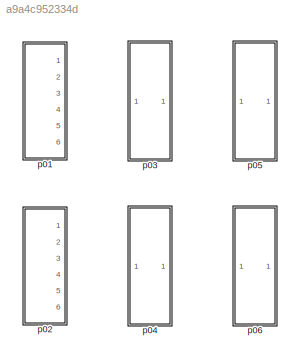
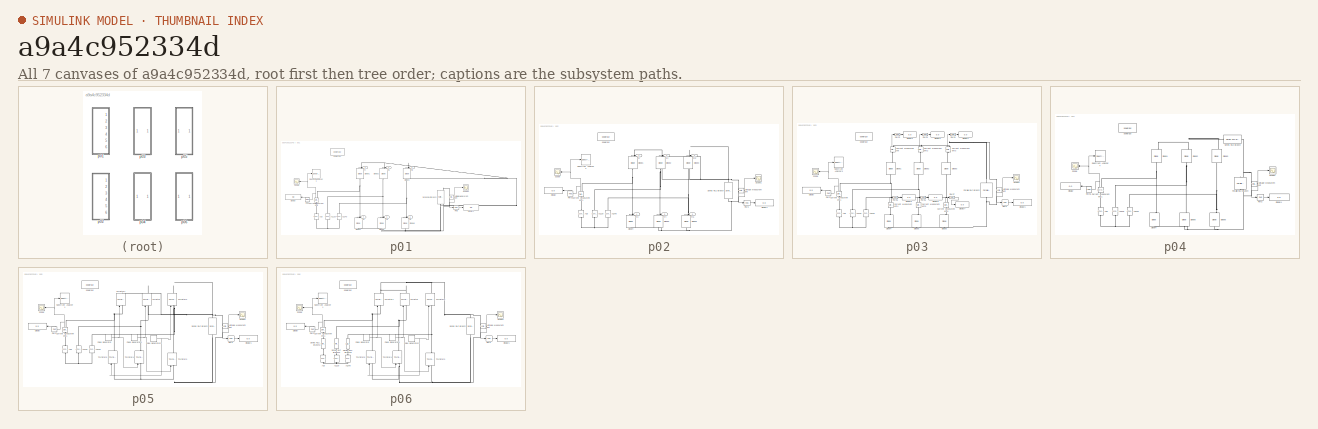
[diagram: thumbnail index - all 7 canvases of the model, root first then tree order]
MODEL slx_a9a4c952334d
KIND model
CONFIG AbsTol = auto
CONFIG EnableMultiTasking = off
CONFIG FixedStep = auto
CONFIG MaxStep = auto
CONFIG MinStep = auto
CONFIG RelTol = 1e-3
CONFIG SampleTimeConstraint = Unconstrained
CONFIG Solver = VariableStepAuto
CONFIG SolverName = VariableStepAuto
CONFIG StartTime = 0.0
CONFIG StopTime = 0.1
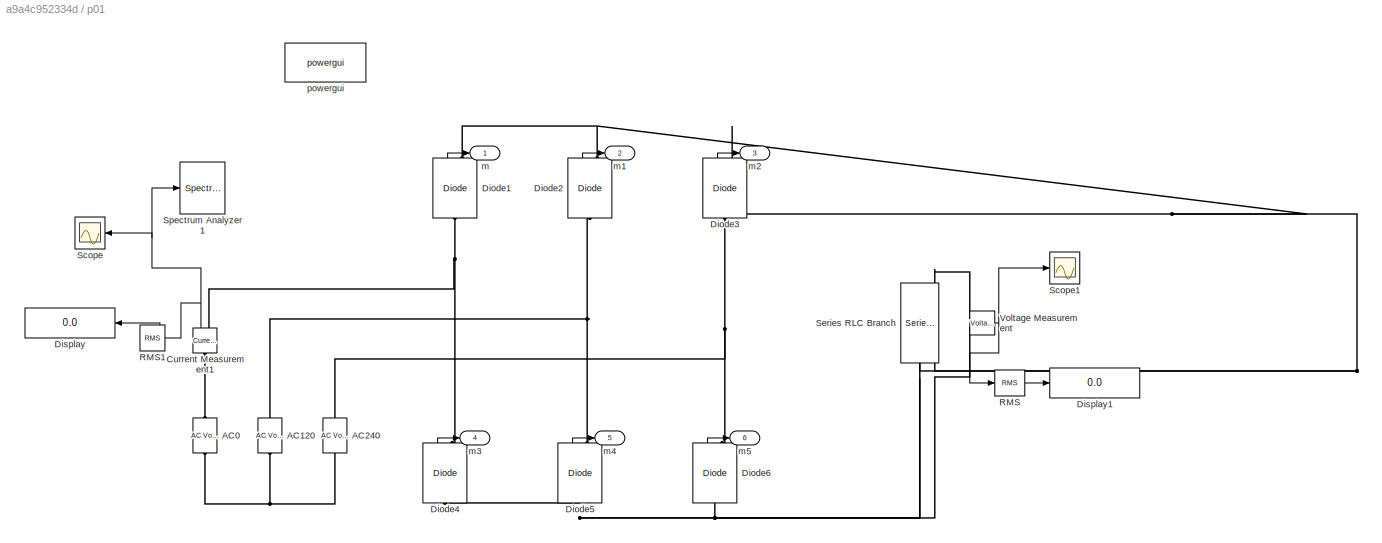
BLOCK [SubSystem] p01
  Commented = on
  Ports = [0, 6]
  RequestExecContextInheritance = off
BLOCK [Reference] p01/AC0  REF=powerlib/Electrical
Sources/AC Voltage Source
  NameLocation = right
  Ports = [0, 0, 0, 0, 0, 1, 1]
  SourceBlock = powerlib/Electrical\nSources/AC Voltage Source
  SourceProductBaseCode = PS
  SourceType = AC Voltage Source
BLOCK [Reference] p01/AC120  REF=powerlib/Electrical
Sources/AC Voltage Source
  NameLocation = right
  Ports = [0, 0, 0, 0, 0, 1, 1]
  SourceBlock = powerlib/Electrical\nSources/AC Voltage Source
  SourceProductBaseCode = PS
  SourceType = AC Voltage Source
BLOCK [Reference] p01/AC240  REF=powerlib/Electrical
Sources/AC Voltage Source
  NameLocation = right
  Ports = [0, 0, 0, 0, 0, 1, 1]
  SourceBlock = powerlib/Electrical\nSources/AC Voltage Source
  SourceProductBaseCode = PS
  SourceType = AC Voltage Source
BLOCK [Reference] p01/Current Measurement1  REF=powerlib/Measurements/Current Measurement
  NameLocation = right
  Ports = [0, 1, 0, 0, 0, 1, 1]
  SourceBlock = powerlib/Measurements/Current Measurement
  SourceProductBaseCode = PS
  SourceType = Current Measurement
  UserDataPersistent = on
BLOCK [Reference] p01/Diode1  REF=powerlib/Power
Electronics/Diode
  NameLocation = right
  Ports = [0, 1, 0, 0, 0, 1, 1]
  SourceBlock = powerlib/Power\nElectronics/Diode
  SourceProductBaseCode = PS
  SourceType = Diode
BLOCK [Reference] p01/Diode2  REF=powerlib/Power
Electronics/Diode
  NameLocation = right
  Ports = [0, 1, 0, 0, 0, 1, 1]
  SourceBlock = powerlib/Power\nElectronics/Diode
  SourceProductBaseCode = PS
  SourceType = Diode
BLOCK [Reference] p01/Diode3  REF=powerlib/Power
Electronics/Diode
  NameLocation = right
  Ports = [0, 1, 0, 0, 0, 1, 1]
  SourceBlock = powerlib/Power\nElectronics/Diode
  SourceProductBaseCode = PS
  SourceType = Diode
BLOCK [Reference] p01/Diode4  REF=powerlib/Power
Electronics/Diode
  NameLocation = right
  Ports = [0, 1, 0, 0, 0, 1, 1]
  SourceBlock = powerlib/Power\nElectronics/Diode
  SourceProductBaseCode = PS
  SourceType = Diode
BLOCK [Reference] p01/Diode5  REF=powerlib/Power
Electronics/Diode
  NameLocation = right
  Ports = [0, 1, 0, 0, 0, 1, 1]
  SourceBlock = powerlib/Power\nElectronics/Diode
  SourceProductBaseCode = PS
  SourceType = Diode
BLOCK [Reference] p01/Diode6  REF=powerlib/Power
Electronics/Diode
  NameLocation = right
  Ports = [0, 1, 0, 0, 0, 1, 1]
  SourceBlock = powerlib/Power\nElectronics/Diode
  SourceProductBaseCode = PS
  SourceType = Diode
BLOCK [Display] p01/Display
  Decimation = 1
  NameLocation = top
  Ports = [1]
BLOCK [Display] p01/Display1
  Decimation = 1
  Ports = [1]
BLOCK [Reference] p01/RMS  REF=powerlib_meascontrol/Measurements/RMS
  Ports = [1, 1]
  SourceBlock = powerlib_meascontrol/Measurements/RMS
  SourceProductBaseCode = PS
  SourceType = RMS
BLOCK [Reference] p01/RMS1  REF=powerlib_meascontrol/Measurements/RMS
  NameLocation = top
  Ports = [1, 1]
  SourceBlock = powerlib_meascontrol/Measurements/RMS
  SourceProductBaseCode = PS
  SourceType = RMS
BLOCK [Scope] p01/Scope
  Floating = off
  NameLocation = top
  NumInputPorts = 1
  Ports = [1]
  ScopeSpecificationString = Simulink.scopes.TimeScopeBlockCfg('CurrentConfiguration', extmgr.ConfigurationSet(extmgr.Configuration('Core','General UI',true),extmgr.Configuration('Core','Source UI',true),extmgr.Configuration('Sources','WiredSimulink',true,'DataLoggingVariableName','ScopeData2'),extmgr.Configuration('Visuals','Time Domain',true,'SerializedDisplays',{struct('MinYLimReal','-12.59327','MaxYLimReal','12.59327','YL...<+1385ch>
BLOCK [Scope] p01/Scope1
  Floating = off
  NumInputPorts = 1
  Ports = [1]
  ScopeSpecificationString = Simulink.scopes.TimeScopeBlockCfg('CurrentConfiguration', extmgr.ConfigurationSet(extmgr.Configuration('Core','General UI',true),extmgr.Configuration('Core','Source UI',true),extmgr.Configuration('Sources','WiredSimulink',true,'DataLoggingVariableName','ScopeData1'),extmgr.Configuration('Visuals','Time Domain',true,'SerializedDisplays',{struct('MinYLimReal','456.05139','MaxYLimReal','546.2925','YL...<+1417ch>
BLOCK [Reference] p01/Series RLC Branch  REF=powerlib/Elements/Series RLC Branch
  NameLocation = left
  Ports = [0, 0, 0, 0, 0, 1, 1]
  SourceBlock = powerlib/Elements/Series RLC Branch
  SourceProductBaseCode = PS
  SourceType = Series RLC Branch
BLOCK [SpectrumAnalyzer] p01/Spectrum Analyzer 1
  Ports = [1]
  ScopeSpecificationString = spbscopes.SpectrumAnalyzerBlockCfg('CurrentConfiguration', extmgr.ConfigurationSet(extmgr.Configuration('Core','General UI',true),extmgr.Configuration('Core','Source UI',true),extmgr.Configuration('Sources','WiredSimulink',true),extmgr.Configuration('Visuals','Spectrum',true,'AxesProperties',struct('Color',{[0 0 0],[0 0 0]},'XColor',{[0.686274509803922 0.686274509803922 0.686274509803922],[0.68627...<+2526ch>  <repeated x3 — deduplicated; at blocks: Spectrum Analyzer 1>
BLOCK [Reference] p01/Voltage Measurement  REF=powerlib/Measurements/Voltage Measurement
  Ports = [0, 1, 0, 0, 0, 2]
  SourceBlock = powerlib/Measurements/Voltage Measurement
  SourceProductBaseCode = PS
  SourceType = Voltage Measurement
  UserDataPersistent = on
BLOCK [Outport] p01/m
BLOCK [Outport] p01/m1
  Port = 2
BLOCK [Outport] p01/m2
  Port = 3
BLOCK [Outport] p01/m3
  Port = 4
BLOCK [Outport] p01/m4
  Port = 5
BLOCK [Outport] p01/m5
  Port = 6
BLOCK [Reference] p01/powergui  REF=powerlib/powergui
  Ports = []
  Priority = 1
  SourceBlock = powerlib/powergui
  SourceProductBaseCode = PS
  SourceType = PSB option menu block
BLOCK [SubSystem] p02
  Commented = on
  Ports = [0, 6]
  RequestExecContextInheritance = off
BLOCK [Reference] p02/AC0  REF=powerlib/Electrical
Sources/AC Voltage Source
  NameLocation = right
  Ports = [0, 0, 0, 0, 0, 1, 1]
  SourceBlock = powerlib/Electrical\nSources/AC Voltage Source
  SourceProductBaseCode = PS
  SourceType = AC Voltage Source
BLOCK [Reference] p02/AC120  REF=powerlib/Electrical
Sources/AC Voltage Source
  NameLocation = right
  Ports = [0, 0, 0, 0, 0, 1, 1]
  SourceBlock = powerlib/Electrical\nSources/AC Voltage Source
  SourceProductBaseCode = PS
  SourceType = AC Voltage Source
BLOCK [Reference] p02/AC240  REF=powerlib/Electrical
Sources/AC Voltage Source
  NameLocation = right
  Ports = [0, 0, 0, 0, 0, 1, 1]
  SourceBlock = powerlib/Electrical\nSources/AC Voltage Source
  SourceProductBaseCode = PS
  SourceType = AC Voltage Source
BLOCK [Reference] p02/Current Measurement1  REF=powerlib/Measurements/Current Measurement
  NameLocation = right
  Ports = [0, 1, 0, 0, 0, 1, 1]
  SourceBlock = powerlib/Measurements/Current Measurement
  SourceProductBaseCode = PS
  SourceType = Current Measurement
  UserDataPersistent = on
BLOCK [Reference] p02/Diode1  REF=powerlib/Power
Electronics/Diode
  NameLocation = right
  Ports = [0, 1, 0, 0, 0, 1, 1]
  SourceBlock = powerlib/Power\nElectronics/Diode
  SourceProductBaseCode = PS
  SourceType = Diode
BLOCK [Reference] p02/Diode2  REF=powerlib/Power
Electronics/Diode
  NameLocation = right
  Ports = [0, 1, 0, 0, 0, 1, 1]
  SourceBlock = powerlib/Power\nElectronics/Diode
  SourceProductBaseCode = PS
  SourceType = Diode
BLOCK [Reference] p02/Diode3  REF=powerlib/Power
Electronics/Diode
  NameLocation = right
  Ports = [0, 1, 0, 0, 0, 1, 1]
  SourceBlock = powerlib/Power\nElectronics/Diode
  SourceProductBaseCode = PS
  SourceType = Diode
BLOCK [Reference] p02/Diode4  REF=powerlib/Power
Electronics/Diode
  NameLocation = right
  Ports = [0, 1, 0, 0, 0, 1, 1]
  SourceBlock = powerlib/Power\nElectronics/Diode
  SourceProductBaseCode = PS
  SourceType = Diode
BLOCK [Reference] p02/Diode5  REF=powerlib/Power
Electronics/Diode
  NameLocation = right
  Ports = [0, 1, 0, 0, 0, 1, 1]
  SourceBlock = powerlib/Power\nElectronics/Diode
  SourceProductBaseCode = PS
  SourceType = Diode
BLOCK [Reference] p02/Diode6  REF=powerlib/Power
Electronics/Diode
  NameLocation = right
  Ports = [0, 1, 0, 0, 0, 1, 1]
  SourceBlock = powerlib/Power\nElectronics/Diode
  SourceProductBaseCode = PS
  SourceType = Diode
BLOCK [Display] p02/Display
  Decimation = 1
  NameLocation = top
  Ports = [1]
BLOCK [Display] p02/Display1
  Decimation = 1
  Ports = [1]
BLOCK [Reference] p02/RMS  REF=powerlib_meascontrol/Measurements/RMS
  Ports = [1, 1]
  SourceBlock = powerlib_meascontrol/Measurements/RMS
  SourceProductBaseCode = PS
  SourceType = RMS
BLOCK [Reference] p02/RMS1  REF=powerlib_meascontrol/Measurements/RMS
  NameLocation = top
  Ports = [1, 1]
  SourceBlock = powerlib_meascontrol/Measurements/RMS
  SourceProductBaseCode = PS
  SourceType = RMS
BLOCK [Scope] p02/Scope
  Floating = off
  NameLocation = top
  NumInputPorts = 1
  Ports = [1]
  ScopeSpecificationString = Simulink.scopes.TimeScopeBlockCfg('CurrentConfiguration', extmgr.ConfigurationSet(extmgr.Configuration('Core','General UI',true),extmgr.Configuration('Core','Source UI',true),extmgr.Configuration('Sources','WiredSimulink',true,'DataLoggingVariableName','ScopeData2'),extmgr.Configuration('Visuals','Time Domain',true,'SerializedDisplays',{struct('MinYLimReal','-12.59839','MaxYLimReal','12.59839','YL...<+1385ch>
BLOCK [Scope] p02/Scope1
  Floating = off
  NumInputPorts = 1
  Ports = [1]
  ScopeSpecificationString = Simulink.scopes.TimeScopeBlockCfg('CurrentConfiguration', extmgr.ConfigurationSet(extmgr.Configuration('Core','General UI',true),extmgr.Configuration('Core','Source UI',true),extmgr.Configuration('Sources','WiredSimulink',true),extmgr.Configuration('Visuals','Time Domain',true,'SerializedDisplays',{struct('MinYLimReal','460.58964','MaxYLimReal','560.80302','YLabelReal','','MinYLimMag','460.58964',...<+1353ch>
BLOCK [Reference] p02/Series RLC Branch  REF=powerlib/Elements/Series RLC Branch
  NameLocation = left
  Ports = [0, 0, 0, 0, 0, 1, 1]
  SourceBlock = powerlib/Elements/Series RLC Branch
  SourceProductBaseCode = PS
  SourceType = Series RLC Branch
BLOCK [SpectrumAnalyzer] p02/Spectrum Analyzer 2
  Ports = [1]
  ScopeSpecificationString = spbscopes.SpectrumAnalyzerBlockCfg('CurrentConfiguration', extmgr.ConfigurationSet(extmgr.Configuration('Core','General UI',true),extmgr.Configuration('Core','Source UI',true),extmgr.Configuration('Sources','WiredSimulink',true),extmgr.Configuration('Visuals','Spectrum',true,'AxesProperties',struct('Color',{[0 0 0],[0 0 0]},'XColor',{[0.686274509803922 0.686274509803922 0.686274509803922],[0.68627...<+2519ch>
BLOCK [Reference] p02/Voltage Measurement  REF=powerlib/Measurements/Voltage Measurement
  Ports = [0, 1, 0, 0, 0, 2]
  SourceBlock = powerlib/Measurements/Voltage Measurement
  SourceProductBaseCode = PS
  SourceType = Voltage Measurement
  UserDataPersistent = on
BLOCK [Outport] p02/m
BLOCK [Outport] p02/m1
  Port = 2
BLOCK [Outport] p02/m2
  Port = 3
BLOCK [Outport] p02/m3
  Port = 4
BLOCK [Outport] p02/m4
  Port = 5
BLOCK [Outport] p02/m5
  Port = 6
BLOCK [Reference] p02/powergui  REF=powerlib/powergui
  Ports = []
  Priority = 1
  SourceBlock = powerlib/powergui
  SourceProductBaseCode = PS
  SourceType = PSB option menu block
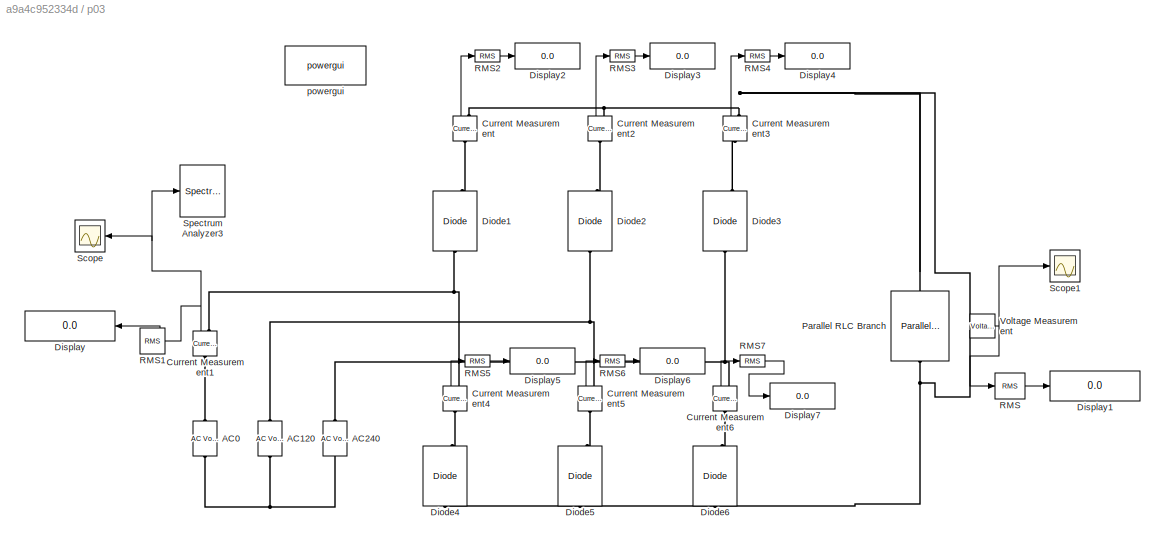
BLOCK [SubSystem] p03
  Commented = on
  Ports = []
  RequestExecContextInheritance = off
BLOCK [Reference] p03/AC0  REF=powerlib/Electrical
Sources/AC Voltage Source
  NameLocation = right
  Ports = [0, 0, 0, 0, 0, 1, 1]
  SourceBlock = powerlib/Electrical\nSources/AC Voltage Source
  SourceProductBaseCode = PS
  SourceType = AC Voltage Source
BLOCK [Reference] p03/AC120  REF=powerlib/Electrical
Sources/AC Voltage Source
  NameLocation = right
  Ports = [0, 0, 0, 0, 0, 1, 1]
  SourceBlock = powerlib/Electrical\nSources/AC Voltage Source
  SourceProductBaseCode = PS
  SourceType = AC Voltage Source
BLOCK [Reference] p03/AC240  REF=powerlib/Electrical
Sources/AC Voltage Source
  NameLocation = right
  Ports = [0, 0, 0, 0, 0, 1, 1]
  SourceBlock = powerlib/Electrical\nSources/AC Voltage Source
  SourceProductBaseCode = PS
  SourceType = AC Voltage Source
BLOCK [Reference] p03/Current Measurement  REF=powerlib/Measurements/Current Measurement
  NameLocation = right
  Ports = [0, 1, 0, 0, 0, 1, 1]
  SourceBlock = powerlib/Measurements/Current Measurement
  SourceProductBaseCode = PS
  SourceType = Current Measurement
  UserDataPersistent = on
BLOCK [Reference] p03/Current Measurement1  REF=powerlib/Measurements/Current Measurement
  NameLocation = right
  Ports = [0, 1, 0, 0, 0, 1, 1]
  SourceBlock = powerlib/Measurements/Current Measurement
  SourceProductBaseCode = PS
  SourceType = Current Measurement
  UserDataPersistent = on
BLOCK [Reference] p03/Current Measurement2  REF=powerlib/Measurements/Current Measurement
  NameLocation = right
  Ports = [0, 1, 0, 0, 0, 1, 1]
  SourceBlock = powerlib/Measurements/Current Measurement
  SourceProductBaseCode = PS
  SourceType = Current Measurement
  UserDataPersistent = on
BLOCK [Reference] p03/Current Measurement3  REF=powerlib/Measurements/Current Measurement
  NameLocation = right
  Ports = [0, 1, 0, 0, 0, 1, 1]
  SourceBlock = powerlib/Measurements/Current Measurement
  SourceProductBaseCode = PS
  SourceType = Current Measurement
  UserDataPersistent = on
BLOCK [Reference] p03/Current Measurement4  REF=powerlib/Measurements/Current Measurement
  NameLocation = right
  Ports = [0, 1, 0, 0, 0, 1, 1]
  SourceBlock = powerlib/Measurements/Current Measurement
  SourceProductBaseCode = PS
  SourceType = Current Measurement
  UserDataPersistent = on
BLOCK [Reference] p03/Current Measurement5  REF=powerlib/Measurements/Current Measurement
  NameLocation = right
  Ports = [0, 1, 0, 0, 0, 1, 1]
  SourceBlock = powerlib/Measurements/Current Measurement
  SourceProductBaseCode = PS
  SourceType = Current Measurement
  UserDataPersistent = on
BLOCK [Reference] p03/Current Measurement6  REF=powerlib/Measurements/Current Measurement
  NameLocation = right
  Ports = [0, 1, 0, 0, 0, 1, 1]
  SourceBlock = powerlib/Measurements/Current Measurement
  SourceProductBaseCode = PS
  SourceType = Current Measurement
  UserDataPersistent = on
BLOCK [Reference] p03/Diode1  REF=powerlib/Power
Electronics/Diode
  NameLocation = right
  Ports = [0, 1, 0, 0, 0, 1, 1]
  SourceBlock = powerlib/Power\nElectronics/Diode
  SourceProductBaseCode = PS
  SourceType = Diode
BLOCK [Reference] p03/Diode2  REF=powerlib/Power
Electronics/Diode
  NameLocation = right
  Ports = [0, 1, 0, 0, 0, 1, 1]
  SourceBlock = powerlib/Power\nElectronics/Diode
  SourceProductBaseCode = PS
  SourceType = Diode
BLOCK [Reference] p03/Diode3  REF=powerlib/Power
Electronics/Diode
  NameLocation = right
  Ports = [0, 1, 0, 0, 0, 1, 1]
  SourceBlock = powerlib/Power\nElectronics/Diode
  SourceProductBaseCode = PS
  SourceType = Diode
BLOCK [Reference] p03/Diode4  REF=powerlib/Power
Electronics/Diode
  NameLocation = right
  Ports = [0, 1, 0, 0, 0, 1, 1]
  SourceBlock = powerlib/Power\nElectronics/Diode
  SourceProductBaseCode = PS
  SourceType = Diode
BLOCK [Reference] p03/Diode5  REF=powerlib/Power
Electronics/Diode
  NameLocation = right
  Ports = [0, 1, 0, 0, 0, 1, 1]
  SourceBlock = powerlib/Power\nElectronics/Diode
  SourceProductBaseCode = PS
  SourceType = Diode
BLOCK [Reference] p03/Diode6  REF=powerlib/Power
Electronics/Diode
  NameLocation = right
  Ports = [0, 1, 0, 0, 0, 1, 1]
  SourceBlock = powerlib/Power\nElectronics/Diode
  SourceProductBaseCode = PS
  SourceType = Diode
BLOCK [Display] p03/Display
  Decimation = 1
  NameLocation = top
  Ports = [1]
BLOCK [Display] p03/Display1
  Decimation = 1
  Ports = [1]
BLOCK [Display] p03/Display2
  Decimation = 1
  Ports = [1]
BLOCK [Display] p03/Display3
  Decimation = 1
  Ports = [1]
BLOCK [Display] p03/Display4
  Decimation = 1
  Ports = [1]
BLOCK [Display] p03/Display5
  Decimation = 1
  Ports = [1]
BLOCK [Display] p03/Display6
  Decimation = 1
  Ports = [1]
BLOCK [Display] p03/Display7
  Decimation = 1
  Ports = [1]
BLOCK [Reference] p03/Parallel RLC Branch  REF=powerlib/Elements/Parallel RLC Branch
  AttributesFormatString = \n
  NameLocation = left
  Ports = [0, 0, 0, 0, 0, 1, 1]
  SourceBlock = powerlib/Elements/Parallel RLC Branch
  SourceProductBaseCode = PS
  SourceType = Parallel RLC Branch
BLOCK [Reference] p03/RMS  REF=powerlib_meascontrol/Measurements/RMS
  Ports = [1, 1]
  SourceBlock = powerlib_meascontrol/Measurements/RMS
  SourceProductBaseCode = PS
  SourceType = RMS
BLOCK [Reference] p03/RMS1  REF=powerlib_meascontrol/Measurements/RMS
  NameLocation = top
  Ports = [1, 1]
  SourceBlock = powerlib_meascontrol/Measurements/RMS
  SourceProductBaseCode = PS
  SourceType = RMS
BLOCK [Reference] p03/RMS2  REF=dspstat3/RMS
  Ports = [1, 1]
  SourceBlock = dspstat3/RMS
  SourceProductBaseCode = DS
  SourceType = RMS
  UserDataPersistent = on
BLOCK [Reference] p03/RMS3  REF=dspstat3/RMS
  Ports = [1, 1]
  SourceBlock = dspstat3/RMS
  SourceProductBaseCode = DS
  SourceType = RMS
  UserDataPersistent = on
BLOCK [Reference] p03/RMS4  REF=dspstat3/RMS
  Ports = [1, 1]
  SourceBlock = dspstat3/RMS
  SourceProductBaseCode = DS
  SourceType = RMS
  UserDataPersistent = on
BLOCK [Reference] p03/RMS5  REF=dspstat3/RMS
  Ports = [1, 1]
  SourceBlock = dspstat3/RMS
  SourceProductBaseCode = DS
  SourceType = RMS
  UserDataPersistent = on
BLOCK [Reference] p03/RMS6  REF=dspstat3/RMS
  Ports = [1, 1]
  SourceBlock = dspstat3/RMS
  SourceProductBaseCode = DS
  SourceType = RMS
  UserDataPersistent = on
BLOCK [Reference] p03/RMS7  REF=dspstat3/RMS
  Ports = [1, 1]
  SourceBlock = dspstat3/RMS
  SourceProductBaseCode = DS
  SourceType = RMS
  UserDataPersistent = on
BLOCK [Scope] p03/Scope
  Floating = off
  NameLocation = top
  NumInputPorts = 1
  Ports = [1]
  ScopeSpecificationString = Simulink.scopes.TimeScopeBlockCfg('CurrentConfiguration', extmgr.ConfigurationSet(extmgr.Configuration('Core','General UI',true),extmgr.Configuration('Core','Source UI',true),extmgr.Configuration('Sources','WiredSimulink',true,'DataLoggingVariableName','ScopeData2'),extmgr.Configuration('Visuals','Time Domain',true,'SerializedDisplays',{struct('MinYLimReal','-165.10589','MaxYLimReal','165.1059','Y...<+1408ch>
BLOCK [Scope] p03/Scope1
  Floating = off
  NumInputPorts = 1
  Ports = [1]
  ScopeSpecificationString = Simulink.scopes.TimeScopeBlockCfg('CurrentConfiguration', extmgr.ConfigurationSet(extmgr.Configuration('Core','General UI',true),extmgr.Configuration('Core','Source UI',true),extmgr.Configuration('Sources','WiredSimulink',true),extmgr.Configuration('Visuals','Time Domain',true,'SerializedDisplays',{struct('MinYLimReal','-45.01462','MaxYLimReal','1047.18177','YLabelReal','','MinYLimMag','0.00000','...<+1353ch>
BLOCK [SpectrumAnalyzer] p03/Spectrum Analyzer3
  Ports = [1]
  ScopeSpecificationString = spbscopes.SpectrumAnalyzerBlockCfg('CurrentConfiguration', extmgr.ConfigurationSet(extmgr.Configuration('Core','General UI',true),extmgr.Configuration('Core','Source UI',true),extmgr.Configuration('Sources','WiredSimulink',true),extmgr.Configuration('Visuals','Spectrum',true,'AxesProperties',struct('Color',{[0 0 0],[0 0 0]},'XColor',{[0.686274509803922 0.686274509803922 0.686274509803922],[0.68627...<+2479ch>
BLOCK [Reference] p03/Voltage Measurement  REF=powerlib/Measurements/Voltage Measurement
  Ports = [0, 1, 0, 0, 0, 2]
  SourceBlock = powerlib/Measurements/Voltage Measurement
  SourceProductBaseCode = PS
  SourceType = Voltage Measurement
  UserDataPersistent = on
BLOCK [Reference] p03/powergui  REF=powerlib/powergui
  Ports = []
  Priority = 1
  SourceBlock = powerlib/powergui
  SourceProductBaseCode = PS
  SourceType = PSB option menu block
BLOCK [SubSystem] p04
  Commented = on
  Ports = []
  RequestExecContextInheritance = off
BLOCK [Reference] p04/AC0  REF=powerlib/Electrical
Sources/AC Voltage Source
  NameLocation = right
  Ports = [0, 0, 0, 0, 0, 1, 1]
  SourceBlock = powerlib/Electrical\nSources/AC Voltage Source
  SourceProductBaseCode = PS
  SourceType = AC Voltage Source
BLOCK [Reference] p04/AC120  REF=powerlib/Electrical
Sources/AC Voltage Source
  NameLocation = right
  Ports = [0, 0, 0, 0, 0, 1, 1]
  SourceBlock = powerlib/Electrical\nSources/AC Voltage Source
  SourceProductBaseCode = PS
  SourceType = AC Voltage Source
BLOCK [Reference] p04/AC240  REF=powerlib/Electrical
Sources/AC Voltage Source
  NameLocation = right
  Ports = [0, 0, 0, 0, 0, 1, 1]
  SourceBlock = powerlib/Electrical\nSources/AC Voltage Source
  SourceProductBaseCode = PS
  SourceType = AC Voltage Source
BLOCK [Reference] p04/Current Measurement1  REF=powerlib/Measurements/Current Measurement
  NameLocation = right
  Ports = [0, 1, 0, 0, 0, 1, 1]
  SourceBlock = powerlib/Measurements/Current Measurement
  SourceProductBaseCode = PS
  SourceType = Current Measurement
  UserDataPersistent = on
BLOCK [Reference] p04/Diode1  REF=powerlib/Power
Electronics/Diode
  NameLocation = right
  Ports = [0, 1, 0, 0, 0, 1, 1]
  SourceBlock = powerlib/Power\nElectronics/Diode
  SourceProductBaseCode = PS
  SourceType = Diode
BLOCK [Reference] p04/Diode2  REF=powerlib/Power
Electronics/Diode
  NameLocation = right
  Ports = [0, 1, 0, 0, 0, 1, 1]
  SourceBlock = powerlib/Power\nElectronics/Diode
  SourceProductBaseCode = PS
  SourceType = Diode
BLOCK [Reference] p04/Diode3  REF=powerlib/Power
Electronics/Diode
  NameLocation = right
  Ports = [0, 1, 0, 0, 0, 1, 1]
  SourceBlock = powerlib/Power\nElectronics/Diode
  SourceProductBaseCode = PS
  SourceType = Diode
BLOCK [Reference] p04/Diode4  REF=powerlib/Power
Electronics/Diode
  NameLocation = right
  Ports = [0, 1, 0, 0, 0, 1, 1]
  SourceBlock = powerlib/Power\nElectronics/Diode
  SourceProductBaseCode = PS
  SourceType = Diode
BLOCK [Reference] p04/Diode5  REF=powerlib/Power
Electronics/Diode
  NameLocation = right
  Ports = [0, 1, 0, 0, 0, 1, 1]
  SourceBlock = powerlib/Power\nElectronics/Diode
  SourceProductBaseCode = PS
  SourceType = Diode
BLOCK [Reference] p04/Diode6  REF=powerlib/Power
Electronics/Diode
  NameLocation = right
  Ports = [0, 1, 0, 0, 0, 1, 1]
  SourceBlock = powerlib/Power\nElectronics/Diode
  SourceProductBaseCode = PS
  SourceType = Diode
BLOCK [Display] p04/Display
  Decimation = 1
  NameLocation = top
  Ports = [1]
BLOCK [Display] p04/Display1
  Decimation = 1
  Ports = [1]
BLOCK [Reference] p04/Parallel RLC Branch  REF=powerlib/Elements/Parallel RLC Branch
  AttributesFormatString = \n
  NameLocation = left
  Ports = [0, 0, 0, 0, 0, 1, 1]
  SourceBlock = powerlib/Elements/Parallel RLC Branch
  SourceProductBaseCode = PS
  SourceType = Parallel RLC Branch
BLOCK [Reference] p04/RMS  REF=powerlib_meascontrol/Measurements/RMS
  Ports = [1, 1]
  SourceBlock = powerlib_meascontrol/Measurements/RMS
  SourceProductBaseCode = PS
  SourceType = RMS
BLOCK [Reference] p04/RMS1  REF=powerlib_meascontrol/Measurements/RMS
  NameLocation = top
  Ports = [1, 1]
  SourceBlock = powerlib_meascontrol/Measurements/RMS
  SourceProductBaseCode = PS
  SourceType = RMS
BLOCK [Scope] p04/Scope
  Floating = off
  NameLocation = top
  NumInputPorts = 1
  Ports = [1]
  ScopeSpecificationString = Simulink.scopes.TimeScopeBlockCfg('CurrentConfiguration', extmgr.ConfigurationSet(extmgr.Configuration('Core','General UI',true),extmgr.Configuration('Core','Source UI',true),extmgr.Configuration('Sources','WiredSimulink',true,'DataLoggingVariableName','ScopeData2'),extmgr.Configuration('Visuals','Time Domain',true,'SerializedDisplays',{struct('MinYLimReal','-82.40542','MaxYLimReal','403.84849','Y...<+1389ch>
BLOCK [Scope] p04/Scope1
  Floating = off
  NumInputPorts = 1
  Ports = [1]
  ScopeSpecificationString = Simulink.scopes.TimeScopeBlockCfg('CurrentConfiguration', extmgr.ConfigurationSet(extmgr.Configuration('Core','General UI',true),extmgr.Configuration('Core','Source UI',true),extmgr.Configuration('Sources','WiredSimulink',true),extmgr.Configuration('Visuals','Time Domain',true,'SerializedDisplays',{struct('MinYLimReal','460.58964','MaxYLimReal','560.80302','YLabelReal','','MinYLimMag','460.58964',...<+1353ch>
BLOCK [Reference] p04/Series RLC Branch  REF=powerlib/Elements/Series RLC Branch
  Ports = [0, 0, 0, 0, 0, 1, 1]
  SourceBlock = powerlib/Elements/Series RLC Branch
  SourceProductBaseCode = PS
  SourceType = Series RLC Branch
BLOCK [SpectrumAnalyzer] p04/Spectrum Analyzer 4
  Ports = [1]
  ScopeSpecificationString = spbscopes.SpectrumAnalyzerBlockCfg('CurrentConfiguration', extmgr.ConfigurationSet(extmgr.Configuration('Core','General UI',true),extmgr.Configuration('Core','Source UI',true),extmgr.Configuration('Sources','WiredSimulink',true),extmgr.Configuration('Visuals','Spectrum',true,'AxesProperties',struct('Color',{[0 0 0],[0 0 0]},'XColor',{[0.686274509803922 0.686274509803922 0.686274509803922],[0.68627...<+2545ch>
BLOCK [Reference] p04/Voltage Measurement  REF=powerlib/Measurements/Voltage Measurement
  Ports = [0, 1, 0, 0, 0, 2]
  SourceBlock = powerlib/Measurements/Voltage Measurement
  SourceProductBaseCode = PS
  SourceType = Voltage Measurement
  UserDataPersistent = on
BLOCK [Reference] p04/powergui  REF=powerlib/powergui
  Ports = []
  Priority = 1
  SourceBlock = powerlib/powergui
  SourceProductBaseCode = PS
  SourceType = PSB option menu block
BLOCK [SubSystem] p05
  Commented = on
  Ports = []
  RequestExecContextInheritance = off
BLOCK [Reference] p05/AC0  REF=powerlib/Electrical
Sources/AC Voltage Source
  NameLocation = right
  Ports = [0, 0, 0, 0, 0, 1, 1]
  SourceBlock = powerlib/Electrical\nSources/AC Voltage Source
  SourceProductBaseCode = PS
  SourceType = AC Voltage Source
BLOCK [Reference] p05/AC120  REF=powerlib/Electrical
Sources/AC Voltage Source
  NameLocation = right
  Ports = [0, 0, 0, 0, 0, 1, 1]
  SourceBlock = powerlib/Electrical\nSources/AC Voltage Source
  SourceProductBaseCode = PS
  SourceType = AC Voltage Source
BLOCK [Reference] p05/AC240  REF=powerlib/Electrical
Sources/AC Voltage Source
  NameLocation = right
  Ports = [0, 0, 0, 0, 0, 1, 1]
  SourceBlock = powerlib/Electrical\nSources/AC Voltage Source
  SourceProductBaseCode = PS
  SourceType = AC Voltage Source
BLOCK [Reference] p05/Current Measurement1  REF=powerlib/Measurements/Current Measurement
  NameLocation = right
  Ports = [0, 1, 0, 0, 0, 1, 1]
  SourceBlock = powerlib/Measurements/Current Measurement
  SourceProductBaseCode = PS
  SourceType = Current Measurement
  UserDataPersistent = on
BLOCK [Display] p05/Display
  Decimation = 1
  NameLocation = top
  Ports = [1]
BLOCK [Display] p05/Display1
  Decimation = 1
  Ports = [1]
BLOCK [DiscretePulseGenerator] p05/Pulse Generator
  Period = 1/50
  PhaseDelay = (1/50)*(30+30)/360
  Ports = [0, 1]
  PulseType = Time based
  PulseWidth = 50
BLOCK [DiscretePulseGenerator] p05/Pulse Generator1
  Period = 1/50
  PhaseDelay = (1/50)*(150+30)/360
  Ports = [0, 1]
  PulseType = Time based
  PulseWidth = 50
BLOCK [DiscretePulseGenerator] p05/Pulse Generator2
  Period = 1/50
  PhaseDelay = (1/50)*(270+30)/360
  Ports = [0, 1]
  PulseType = Time based
  PulseWidth = 50
BLOCK [Reference] p05/RMS  REF=powerlib_meascontrol/Measurements/RMS
  Ports = [1, 1]
  SourceBlock = powerlib_meascontrol/Measurements/RMS
  SourceProductBaseCode = PS
  SourceType = RMS
BLOCK [Reference] p05/RMS1  REF=powerlib_meascontrol/Measurements/RMS
  NameLocation = top
  Ports = [1, 1]
  SourceBlock = powerlib_meascontrol/Measurements/RMS
  SourceProductBaseCode = PS
  SourceType = RMS
BLOCK [Scope] p05/Scope
  Floating = off
  NameLocation = top
  NumInputPorts = 1
  Ports = [1]
  ScopeSpecificationString = Simulink.scopes.TimeScopeBlockCfg('CurrentConfiguration', extmgr.ConfigurationSet(extmgr.Configuration('Core','General UI',true),extmgr.Configuration('Core','Source UI',true),extmgr.Configuration('Sources','WiredSimulink',true,'DataLoggingVariableName','ScopeData2'),extmgr.Configuration('Visuals','Time Domain',true,'SerializedDisplays',{struct('MinYLimReal','-27.0058','MaxYLimReal','243.31062','YL...<+1406ch>
BLOCK [Scope] p05/Scope1
  Floating = off
  NumInputPorts = 1
  Ports = [1]
  ScopeSpecificationString = Simulink.scopes.TimeScopeBlockCfg('CurrentConfiguration', extmgr.ConfigurationSet(extmgr.Configuration('Core','General UI',true),extmgr.Configuration('Core','Source UI',true),extmgr.Configuration('Sources','WiredSimulink',true,'DataLoggingVariableName','ScopeData1'),extmgr.Configuration('Visuals','Time Domain',true,'SerializedDisplays',{struct('MinYLimReal','-104316.54073','MaxYLimReal','12187.690...<+1441ch>
BLOCK [Reference] p05/Series RLC Branch  REF=powerlib/Elements/Series RLC Branch
  NameLocation = left
  Ports = [0, 0, 0, 0, 0, 1, 1]
  SourceBlock = powerlib/Elements/Series RLC Branch
  SourceProductBaseCode = PS
  SourceType = Series RLC Branch
BLOCK [SpectrumAnalyzer] p05/Spectrum Analyzer 1
  Ports = [1]
BLOCK [Reference] p05/Thyristor  REF=powerlib/Power
Electronics/Thyristor
  NameLocation = right
  Ports = [1, 1, 0, 0, 0, 1, 1]
  SourceBlock = powerlib/Power\nElectronics/Thyristor
  SourceProductBaseCode = PS
  SourceType = Thyristor
BLOCK [Reference] p05/Thyristor1  REF=powerlib/Power
Electronics/Thyristor
  NameLocation = right
  Ports = [1, 1, 0, 0, 0, 1, 1]
  SourceBlock = powerlib/Power\nElectronics/Thyristor
  SourceProductBaseCode = PS
  SourceType = Thyristor
BLOCK [Reference] p05/Thyristor2  REF=powerlib/Power
Electronics/Thyristor
  NameLocation = right
  Ports = [1, 1, 0, 0, 0, 1, 1]
  SourceBlock = powerlib/Power\nElectronics/Thyristor
  SourceProductBaseCode = PS
  SourceType = Thyristor
BLOCK [Reference] p05/Thyristor3  REF=powerlib/Power
Electronics/Thyristor
  NameLocation = right
  Ports = [1, 1, 0, 0, 0, 1, 1]
  SourceBlock = powerlib/Power\nElectronics/Thyristor
  SourceProductBaseCode = PS
  SourceType = Thyristor
BLOCK [Reference] p05/Thyristor4  REF=powerlib/Power
Electronics/Thyristor
  NameLocation = right
  Ports = [1, 1, 0, 0, 0, 1, 1]
  SourceBlock = powerlib/Power\nElectronics/Thyristor
  SourceProductBaseCode = PS
  SourceType = Thyristor
BLOCK [Reference] p05/Thyristor5  REF=powerlib/Power
Electronics/Thyristor
  NameLocation = right
  Ports = [1, 1, 0, 0, 0, 1, 1]
  SourceBlock = powerlib/Power\nElectronics/Thyristor
  SourceProductBaseCode = PS
  SourceType = Thyristor
BLOCK [Reference] p05/Voltage Measurement  REF=powerlib/Measurements/Voltage Measurement
  Ports = [0, 1, 0, 0, 0, 2]
  SourceBlock = powerlib/Measurements/Voltage Measurement
  SourceProductBaseCode = PS
  SourceType = Voltage Measurement
  UserDataPersistent = on
BLOCK [Reference] p05/powergui  REF=powerlib/powergui
  Ports = []
  Priority = 1
  SourceBlock = powerlib/powergui
  SourceProductBaseCode = PS
  SourceType = PSB option menu block
BLOCK [SubSystem] p06
  Commented = on
  Ports = []
  RequestExecContextInheritance = off
BLOCK [Reference] p06/AC0  REF=powerlib/Electrical
Sources/AC Voltage Source
  NameLocation = right
  Ports = [0, 0, 0, 0, 0, 1, 1]
  SourceBlock = powerlib/Electrical\nSources/AC Voltage Source
  SourceProductBaseCode = PS
  SourceType = AC Voltage Source
BLOCK [Reference] p06/AC120  REF=powerlib/Electrical
Sources/AC Voltage Source
  NameLocation = right
  Ports = [0, 0, 0, 0, 0, 1, 1]
  SourceBlock = powerlib/Electrical\nSources/AC Voltage Source
  SourceProductBaseCode = PS
  SourceType = AC Voltage Source
BLOCK [Reference] p06/AC240  REF=powerlib/Electrical
Sources/AC Voltage Source
  NameLocation = right
  Ports = [0, 0, 0, 0, 0, 1, 1]
  SourceBlock = powerlib/Electrical\nSources/AC Voltage Source
  SourceProductBaseCode = PS
  SourceType = AC Voltage Source
BLOCK [Reference] p06/Current Measurement1  REF=powerlib/Measurements/Current Measurement
  NameLocation = right
  Ports = [0, 1, 0, 0, 0, 1, 1]
  SourceBlock = powerlib/Measurements/Current Measurement
  SourceProductBaseCode = PS
  SourceType = Current Measurement
  UserDataPersistent = on
BLOCK [Display] p06/Display
  Decimation = 1
  NameLocation = top
  Ports = [1]
BLOCK [Display] p06/Display1
  Decimation = 1
  Ports = [1]
BLOCK [DiscretePulseGenerator] p06/Pulse Generator
  Period = 1/50
  PhaseDelay = (1/50)*(30+30)/360
  Ports = [0, 1]
  PulseType = Time based
  PulseWidth = 50
BLOCK [DiscretePulseGenerator] p06/Pulse Generator1
  Period = 1/50
  PhaseDelay = (1/50)*(150+30)/360
  Ports = [0, 1]
  PulseType = Time based
  PulseWidth = 50
BLOCK [DiscretePulseGenerator] p06/Pulse Generator2
  Period = 1/50
  PhaseDelay = (1/50)*(270+30)/360
  Ports = [0, 1]
  PulseType = Time based
  PulseWidth = 50
BLOCK [Reference] p06/RMS  REF=powerlib_meascontrol/Measurements/RMS
  Ports = [1, 1]
  SourceBlock = powerlib_meascontrol/Measurements/RMS
  SourceProductBaseCode = PS
  SourceType = RMS
BLOCK [Reference] p06/RMS1  REF=powerlib_meascontrol/Measurements/RMS
  NameLocation = top
  Ports = [1, 1]
  SourceBlock = powerlib_meascontrol/Measurements/RMS
  SourceProductBaseCode = PS
  SourceType = RMS
BLOCK [Scope] p06/Scope
  Floating = off
  NameLocation = top
  NumInputPorts = 1
  Ports = [1]
  ScopeSpecificationString = Simulink.scopes.TimeScopeBlockCfg('CurrentConfiguration', extmgr.ConfigurationSet(extmgr.Configuration('Core','General UI',true),extmgr.Configuration('Core','Source UI',true),extmgr.Configuration('Sources','WiredSimulink',true,'DataLoggingVariableName','ScopeData2'),extmgr.Configuration('Visuals','Time Domain',true,'SerializedDisplays',{struct('MinYLimReal','-27.0058','MaxYLimReal','243.31062','YL...<+1406ch>
BLOCK [Scope] p06/Scope1
  Floating = off
  NumInputPorts = 1
  Ports = [1]
  ScopeSpecificationString = Simulink.scopes.TimeScopeBlockCfg('CurrentConfiguration', extmgr.ConfigurationSet(extmgr.Configuration('Core','General UI',true),extmgr.Configuration('Core','Source UI',true),extmgr.Configuration('Sources','WiredSimulink',true,'DataLoggingVariableName','ScopeData1'),extmgr.Configuration('Visuals','Time Domain',true,'SerializedDisplays',{struct('MinYLimReal','-104626.65341','MaxYLimReal','14978.705...<+1439ch>
BLOCK [Reference] p06/Series RLC Branch  REF=powerlib/Elements/Series RLC Branch
  NameLocation = left
  Ports = [0, 0, 0, 0, 0, 1, 1]
  SourceBlock = powerlib/Elements/Series RLC Branch
  SourceProductBaseCode = PS
  SourceType = Series RLC Branch
BLOCK [Reference] p06/Series RLC Branch1  REF=powerlib/Elements/Series RLC Branch
  NameLocation = right
  Ports = [0, 0, 0, 0, 0, 1, 1]
  SourceBlock = powerlib/Elements/Series RLC Branch
  SourceProductBaseCode = PS
  SourceType = Series RLC Branch
BLOCK [Reference] p06/Series RLC Branch2  REF=powerlib/Elements/Series RLC Branch
  NameLocation = right
  Ports = [0, 0, 0, 0, 0, 1, 1]
  SourceBlock = powerlib/Elements/Series RLC Branch
  SourceProductBaseCode = PS
  SourceType = Series RLC Branch
BLOCK [Reference] p06/Series RLC Branch3  REF=powerlib/Elements/Series RLC Branch
  NameLocation = right
  Ports = [0, 0, 0, 0, 0, 1, 1]
  SourceBlock = powerlib/Elements/Series RLC Branch
  SourceProductBaseCode = PS
  SourceType = Series RLC Branch
BLOCK [SpectrumAnalyzer] p06/Spectrum Analyzer 1
  Ports = [1]
BLOCK [Reference] p06/Thyristor  REF=powerlib/Power
Electronics/Thyristor
  NameLocation = right
  Ports = [1, 1, 0, 0, 0, 1, 1]
  SourceBlock = powerlib/Power\nElectronics/Thyristor
  SourceProductBaseCode = PS
  SourceType = Thyristor
BLOCK [Reference] p06/Thyristor1  REF=powerlib/Power
Electronics/Thyristor
  NameLocation = right
  Ports = [1, 1, 0, 0, 0, 1, 1]
  SourceBlock = powerlib/Power\nElectronics/Thyristor
  SourceProductBaseCode = PS
  SourceType = Thyristor
BLOCK [Reference] p06/Thyristor2  REF=powerlib/Power
Electronics/Thyristor
  NameLocation = right
  Ports = [1, 1, 0, 0, 0, 1, 1]
  SourceBlock = powerlib/Power\nElectronics/Thyristor
  SourceProductBaseCode = PS
  SourceType = Thyristor
BLOCK [Reference] p06/Thyristor3  REF=powerlib/Power
Electronics/Thyristor
  NameLocation = right
  Ports = [1, 1, 0, 0, 0, 1, 1]
  SourceBlock = powerlib/Power\nElectronics/Thyristor
  SourceProductBaseCode = PS
  SourceType = Thyristor
BLOCK [Reference] p06/Thyristor4  REF=powerlib/Power
Electronics/Thyristor
  NameLocation = right
  Ports = [1, 1, 0, 0, 0, 1, 1]
  SourceBlock = powerlib/Power\nElectronics/Thyristor
  SourceProductBaseCode = PS
  SourceType = Thyristor
BLOCK [Reference] p06/Thyristor5  REF=powerlib/Power
Electronics/Thyristor
  NameLocation = right
  Ports = [1, 1, 0, 0, 0, 1, 1]
  SourceBlock = powerlib/Power\nElectronics/Thyristor
  SourceProductBaseCode = PS
  SourceType = Thyristor
BLOCK [Reference] p06/Voltage Measurement  REF=powerlib/Measurements/Voltage Measurement
  Ports = [0, 1, 0, 0, 0, 2]
  SourceBlock = powerlib/Measurements/Voltage Measurement
  SourceProductBaseCode = PS
  SourceType = Voltage Measurement
  UserDataPersistent = on
BLOCK [Reference] p06/powergui  REF=powerlib/powergui
  Ports = []
  Priority = 1
  SourceBlock = powerlib/powergui
  SourceProductBaseCode = PS
  SourceType = PSB option menu block
NET p01/Current Measurement1:1 -> p01/RMS1:1, p01/Scope:1, p01/Spectrum Analyzer 1:1
LINE p01/Diode1:1 -> p01/m:1
LINE p01/Diode2:1 -> p01/m1:1
LINE p01/Diode3:1 -> p01/m2:1
LINE p01/Diode4:1 -> p01/m3:1
LINE p01/Diode5:1 -> p01/m4:1
LINE p01/Diode6:1 -> p01/m5:1
LINE p01/RMS1:1 -> p01/Display:1
LINE p01/RMS:1 -> p01/Display1:1
NET p01/Voltage Measurement:1 -> p01/RMS:1, p01/Scope1:1
NET p02/Current Measurement1:1 -> p02/RMS1:1, p02/Scope:1, p02/Spectrum Analyzer 2:1
LINE p02/Diode1:1 -> p02/m:1
LINE p02/Diode2:1 -> p02/m1:1
LINE p02/Diode3:1 -> p02/m2:1
LINE p02/Diode4:1 -> p02/m3:1
LINE p02/Diode5:1 -> p02/m4:1
LINE p02/Diode6:1 -> p02/m5:1
LINE p02/RMS1:1 -> p02/Display:1
LINE p02/RMS:1 -> p02/Display1:1
NET p02/Voltage Measurement:1 -> p02/RMS:1, p02/Scope1:1
NET p03/Current Measurement1:1 -> p03/RMS1:1, p03/Scope:1, p03/Spectrum Analyzer3:1
LINE p03/Current Measurement2:1 -> p03/RMS3:1
LINE p03/Current Measurement3:1 -> p03/RMS4:1
LINE p03/Current Measurement4:1 -> p03/RMS5:1
LINE p03/Current Measurement5:1 -> p03/RMS6:1
LINE p03/Current Measurement6:1 -> p03/RMS7:1
LINE p03/Current Measurement:1 -> p03/RMS2:1
LINE p03/RMS1:1 -> p03/Display:1
LINE p03/RMS2:1 -> p03/Display2:1
LINE p03/RMS3:1 -> p03/Display3:1
LINE p03/RMS4:1 -> p03/Display4:1
LINE p03/RMS5:1 -> p03/Display5:1
LINE p03/RMS6:1 -> p03/Display6:1
LINE p03/RMS7:1 -> p03/Display7:1
LINE p03/RMS:1 -> p03/Display1:1
NET p03/Voltage Measurement:1 -> p03/RMS:1, p03/Scope1:1
NET p04/Current Measurement1:1 -> p04/RMS1:1, p04/Scope:1, p04/Spectrum Analyzer 4:1
LINE p04/RMS1:1 -> p04/Display:1
LINE p04/RMS:1 -> p04/Display1:1
NET p04/Voltage Measurement:1 -> p04/RMS:1, p04/Scope1:1
NET p05/Current Measurement1:1 -> p05/RMS1:1, p05/Scope:1, p05/Spectrum Analyzer 1:1
NET p05/Pulse Generator1:1 -> p05/Thyristor3:1, p05/Thyristor:1
NET p05/Pulse Generator2:1 -> p05/Thyristor2:1, p05/Thyristor5:1
NET p05/Pulse Generator:1 -> p05/Thyristor1:1, p05/Thyristor4:1
LINE p05/RMS1:1 -> p05/Display:1
LINE p05/RMS:1 -> p05/Display1:1
NET p05/Voltage Measurement:1 -> p05/RMS:1, p05/Scope1:1
NET p06/Current Measurement1:1 -> p06/RMS1:1, p06/Scope:1, p06/Spectrum Analyzer 1:1
NET p06/Pulse Generator1:1 -> p06/Thyristor3:1, p06/Thyristor:1
NET p06/Pulse Generator2:1 -> p06/Thyristor2:1, p06/Thyristor5:1
NET p06/Pulse Generator:1 -> p06/Thyristor1:1, p06/Thyristor4:1
LINE p06/RMS1:1 -> p06/Display:1
LINE p06/RMS:1 -> p06/Display1:1
NET p06/Voltage Measurement:1 -> p06/RMS:1, p06/Scope1:1
PNET net1: p01/AC0:LConn1 -- p01/AC120:LConn1 -- p01/AC240:LConn1
PLINE p01/AC0:RConn1 -- p01/Current Measurement1:LConn1
PNET net2: p01/AC120:RConn1 -- p01/Diode2:LConn1 -- p01/Diode5:RConn1
PNET net3: p01/AC240:RConn1 -- p01/Diode3:LConn1 -- p01/Diode6:RConn1
PNET net4: p01/Current Measurement1:RConn1 -- p01/Diode1:LConn1 -- p01/Diode4:RConn1
PNET net5: p01/Diode1:RConn1 -- p01/Diode2:RConn1 -- p01/Diode3:RConn1 -- p01/Series RLC Branch:LConn1 -- p01/Voltage Measurement:LConn1
PNET net6: p01/Diode4:LConn1 -- p01/Diode5:LConn1 -- p01/Diode6:LConn1 -- p01/Series RLC Branch:RConn1 -- p01/Voltage Measurement:LConn2
PNET net7: p02/AC0:LConn1 -- p02/AC120:LConn1 -- p02/AC240:LConn1
PLINE p02/AC0:RConn1 -- p02/Current Measurement1:LConn1
PNET net8: p02/AC120:RConn1 -- p02/Diode2:LConn1 -- p02/Diode5:RConn1
PNET net9: p02/AC240:RConn1 -- p02/Diode3:LConn1 -- p02/Diode6:RConn1
PNET net10: p02/Current Measurement1:RConn1 -- p02/Diode1:LConn1 -- p02/Diode4:RConn1
PNET net11: p02/Diode1:RConn1 -- p02/Diode2:RConn1 -- p02/Diode3:RConn1 -- p02/Series RLC Branch:LConn1 -- p02/Voltage Measurement:LConn1
PNET net12: p02/Diode4:LConn1 -- p02/Diode5:LConn1 -- p02/Diode6:LConn1 -- p02/Series RLC Branch:RConn1 -- p02/Voltage Measurement:LConn2
PNET net13: p03/AC0:LConn1 -- p03/AC120:LConn1 -- p03/AC240:LConn1
PLINE p03/AC0:RConn1 -- p03/Current Measurement1:LConn1
PNET net14: p03/AC120:RConn1 -- p03/Current Measurement5:RConn1 -- p03/Diode2:LConn1
PNET net15: p03/AC240:RConn1 -- p03/Current Measurement6:RConn1 -- p03/Diode3:LConn1
PNET net16: p03/Current Measurement1:RConn1 -- p03/Current Measurement4:RConn1 -- p03/Diode1:LConn1
PLINE p03/Current Measurement2:LConn1 -- p03/Diode2:RConn1
PNET net17: p03/Current Measurement2:RConn1 -- p03/Current Measurement3:RConn1 -- p03/Current Measurement:RConn1 -- p03/Parallel RLC Branch:LConn1 -- p03/Voltage Measurement:LConn1
PLINE p03/Current Measurement3:LConn1 -- p03/Diode3:RConn1
PLINE p03/Current Measurement4:LConn1 -- p03/Diode4:RConn1
PLINE p03/Current Measurement5:LConn1 -- p03/Diode5:RConn1
PLINE p03/Current Measurement6:LConn1 -- p03/Diode6:RConn1
PLINE p03/Current Measurement:LConn1 -- p03/Diode1:RConn1
PNET net18: p03/Diode4:LConn1 -- p03/Diode5:LConn1 -- p03/Diode6:LConn1 -- p03/Parallel RLC Branch:RConn1 -- p03/Voltage Measurement:LConn2
PNET net19: p04/AC0:LConn1 -- p04/AC120:LConn1 -- p04/AC240:LConn1
PLINE p04/AC0:RConn1 -- p04/Current Measurement1:LConn1
PNET net20: p04/AC120:RConn1 -- p04/Diode2:LConn1 -- p04/Diode5:RConn1
PNET net21: p04/AC240:RConn1 -- p04/Diode3:LConn1 -- p04/Diode6:RConn1
PNET net22: p04/Current Measurement1:RConn1 -- p04/Diode1:LConn1 -- p04/Diode4:RConn1
PNET net23: p04/Diode1:RConn1 -- p04/Diode2:RConn1 -- p04/Diode3:RConn1 -- p04/Series RLC Branch:LConn1
PNET net24: p04/Diode4:LConn1 -- p04/Diode5:LConn1 -- p04/Diode6:LConn1 -- p04/Parallel RLC Branch:RConn1 -- p04/Voltage Measurement:LConn2
PNET net25: p04/Parallel RLC Branch:LConn1 -- p04/Series RLC Branch:RConn1 -- p04/Voltage Measurement:LConn1
PNET net26: p05/AC0:LConn1 -- p05/AC120:LConn1 -- p05/AC240:LConn1
PLINE p05/AC0:RConn1 -- p05/Current Measurement1:LConn1
PNET net27: p05/AC120:RConn1 -- p05/Thyristor4:RConn1 -- p05/Thyristor:LConn1
PNET net28: p05/AC240:RConn1 -- p05/Thyristor2:LConn1 -- p05/Thyristor3:RConn1
PNET net29: p05/Current Measurement1:RConn1 -- p05/Thyristor1:LConn1 -- p05/Thyristor5:RConn1
PNET net30: p05/Series RLC Branch:LConn1 -- p05/Thyristor1:RConn1 -- p05/Thyristor2:RConn1 -- p05/Thyristor:RConn1 -- p05/Voltage Measurement:LConn1
PNET net31: p05/Series RLC Branch:RConn1 -- p05/Thyristor3:LConn1 -- p05/Thyristor4:LConn1 -- p05/Thyristor5:LConn1 -- p05/Voltage Measurement:LConn2
PNET net32: p06/AC0:LConn1 -- p06/AC120:LConn1 -- p06/AC240:LConn1
PLINE p06/AC0:RConn1 -- p06/Series RLC Branch1:LConn1
PLINE p06/AC120:RConn1 -- p06/Series RLC Branch2:LConn1
PLINE p06/AC240:RConn1 -- p06/Series RLC Branch3:LConn1
PLINE p06/Current Measurement1:LConn1 -- p06/Series RLC Branch1:RConn1
PNET net33: p06/Current Measurement1:RConn1 -- p06/Thyristor1:LConn1 -- p06/Thyristor5:RConn1
PNET net34: p06/Series RLC Branch2:RConn1 -- p06/Thyristor4:RConn1 -- p06/Thyristor:LConn1
PNET net35: p06/Series RLC Branch3:RConn1 -- p06/Thyristor2:LConn1 -- p06/Thyristor3:RConn1
PNET net36: p06/Series RLC Branch:LConn1 -- p06/Thyristor1:RConn1 -- p06/Thyristor2:RConn1 -- p06/Thyristor:RConn1 -- p06/Voltage Measurement:LConn1
PNET net37: p06/Series RLC Branch:RConn1 -- p06/Thyristor3:LConn1 -- p06/Thyristor4:LConn1 -- p06/Thyristor5:LConn1 -- p06/Voltage Measurement:LConn2
note: NET lines group one-source signal fan-out (src -> all destinations, sorted); 1:1 wires keep LINE; PNET lines group multi-terminal physical nets as a canonical sorted terminal list (undirected conserving connections); 2-terminal nets keep the pairwise PLINE form
